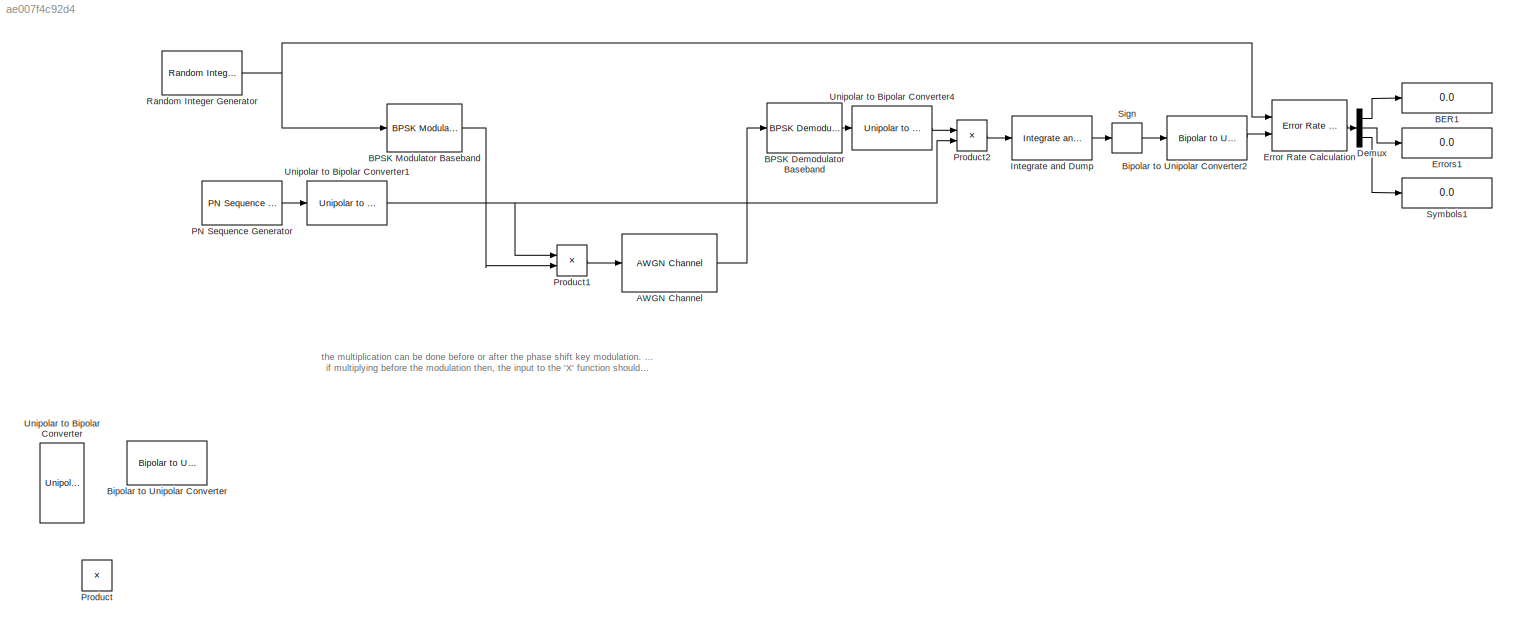
MODEL slx_ae007f4c92d4
KIND model
CONFIG AbsTol = auto
CONFIG EnableMultiTasking = on
CONFIG FixedStep = auto
CONFIG MaxStep = auto
CONFIG MinStep = auto
CONFIG RelTol = 1e-3
CONFIG SampleTimeConstraint = Unconstrained
CONFIG Solver = ode45
CONFIG SolverName = ode45
CONFIG StartTime = 0.0
CONFIG StopTime = 1
BLOCK [Reference] AWGN Channel  REF=commchan3/AWGN
Channel
  Ports = [1, 1]
  SourceBlock = commchan3/AWGN\nChannel
  SourceProductBaseCode = CM
  SourceProductName = Communications Toolbox
  SourceType = AWGN Channel
  UserDataPersistent = on
BLOCK [Display] BER1
  Decimation = 1
  Ports = [1]
BLOCK [Reference] BPSK Demodulator Baseband  REF=commdigbbndpm3/BPSK
Demodulator
Baseband
  Ports = [1, 1]
  SourceBlock = commdigbbndpm3/BPSK\nDemodulator\nBaseband
  SourceProductBaseCode = CM
  SourceProductName = Communications Toolbox
  SourceType = BPSK Demodulator Baseband
BLOCK [Reference] BPSK Modulator Baseband  REF=commdigbbndpm3/BPSK
Modulator
Baseband
  Ports = [1, 1]
  SourceBlock = commdigbbndpm3/BPSK\nModulator\nBaseband
  SourceProductBaseCode = CM
  SourceProductName = Communications Toolbox
  SourceType = BPSK Modulator Baseband
BLOCK [Reference] Bipolar to Unipolar Converter  REF=commutil2/Bipolar to
Unipolar
Converter
  Ports = [1, 1]
  SourceBlock = commutil2/Bipolar to\nUnipolar\nConverter
  SourceProductBaseCode = CM
  SourceProductName = Communications Toolbox
  SourceType = Bipolar to Unipolar Converter
BLOCK [Reference] Bipolar to Unipolar Converter2  REF=commutil2/Bipolar to
Unipolar
Converter
  Ports = [1, 1]
  SourceBlock = commutil2/Bipolar to\nUnipolar\nConverter
  SourceProductBaseCode = CM
  SourceProductName = Communications Toolbox
  SourceType = Bipolar to Unipolar Converter
BLOCK [Demux] Demux
  DisplayOption = bar
  Outputs = 3
  Ports = [1, 3]
BLOCK [Reference] Error Rate Calculation  REF=commsink2/Error Rate
Calculation
  Ports = [2, 1]
  SourceBlock = commsink2/Error Rate\nCalculation
  SourceProductBaseCode = CM
  SourceProductName = Communications Toolbox
  SourceType = Error Rate Calculation
BLOCK [Display] Errors1
  Decimation = 1
  Ports = [1]
BLOCK [Reference] Integrate and Dump  REF=commfilt2/Integrate
and Dump
  Ports = [1, 1]
  SourceBlock = commfilt2/Integrate\nand Dump
  SourceProductBaseCode = CM
  SourceProductName = Communications Toolbox
  SourceType = Integrate and Dump
BLOCK [Reference] PN Sequence Generator  REF=commseqgen2/PN Sequence
Generator
  Ports = [0, 1]
  SourceBlock = commseqgen2/PN Sequence\nGenerator
  SourceType = PN Sequence Generator
BLOCK [Product] Product
  InputSameDT = off
  OutDataTypeStr = Inherit: Inherit via internal rule
  Ports = [2, 1]
  SaturateOnIntegerOverflow = off
BLOCK [Product] Product1
  InputSameDT = off
  OutDataTypeStr = Inherit: Inherit via internal rule
  Ports = [2, 1]
  RndMeth = Floor
  SaturateOnIntegerOverflow = off
BLOCK [Product] Product2
  InputSameDT = off
  OutDataTypeStr = Inherit: Inherit via internal rule
  Ports = [2, 1]
  SaturateOnIntegerOverflow = off
BLOCK [Reference] Random Integer Generator  REF=commrandsrc2/Random Integer
Generator
  Ports = [0, 1]
  SourceBlock = commrandsrc2/Random Integer\nGenerator
  SourceType = Random Integer Generator
BLOCK [Signum] Sign
BLOCK [Display] Symbols1
  Decimation = 1
  Ports = [1]
BLOCK [Reference] Unipolar to Bipolar Converter  REF=commutil2/Unipolar to
Bipolar
Converter
  Ports = [1, 1]
  SourceBlock = commutil2/Unipolar to\nBipolar\nConverter
  SourceProductBaseCode = CM
  SourceProductName = Communications Toolbox
  SourceType = Unipolar to Bipolar Converter
BLOCK [Reference] Unipolar to Bipolar Converter1  REF=commutil2/Unipolar to
Bipolar
Converter
  Ports = [1, 1]
  SourceBlock = commutil2/Unipolar to\nBipolar\nConverter
  SourceProductBaseCode = CM
  SourceProductName = Communications Toolbox
  SourceType = Unipolar to Bipolar Converter
BLOCK [Reference] Unipolar to Bipolar Converter4  REF=commutil2/Unipolar to
Bipolar
Converter
  Ports = [1, 1]
  SourceBlock = commutil2/Unipolar to\nBipolar\nConverter
  SourceProductBaseCode = CM
  SourceProductName = Communications Toolbox
  SourceType = Unipolar to Bipolar Converter
ANNOTATION (root): the multiplication can be done before or after the phase shift key modulation. Remember to match the format (bipolar/unipolar). if multiplying before the modulation then, the input to the 'X' function should be both bipolar and the input to the modulator unipolar.
LINE AWGN Channel:1 -> BPSK Demodulator Baseband:1
LINE BPSK Demodulator Baseband:1 -> Unipolar to Bipolar Converter4:1
LINE BPSK Modulator Baseband:1 -> Product1:2
LINE Bipolar to Unipolar Converter2:1 -> Error Rate Calculation:2
LINE Demux:1 -> BER1:1
LINE Demux:2 -> Errors1:1
LINE Demux:3 -> Symbols1:1
LINE Error Rate Calculation:1 -> Demux:1
LINE Integrate and Dump:1 -> Sign:1
LINE PN Sequence Generator:1 -> Unipolar to Bipolar Converter1:1
LINE Product1:1 -> AWGN Channel:1
LINE Product2:1 -> Integrate and Dump:1
NET Random Integer Generator:1 -> BPSK Modulator Baseband:1, Error Rate Calculation:1
LINE Sign:1 -> Bipolar to Unipolar Converter2:1
NET Unipolar to Bipolar Converter1:1 -> Product1:1, Product2:2
LINE Unipolar to Bipolar Converter4:1 -> Product2:1
note: NET lines group one-source signal fan-out (src -> all destinations, sorted); 1:1 wires keep LINE
